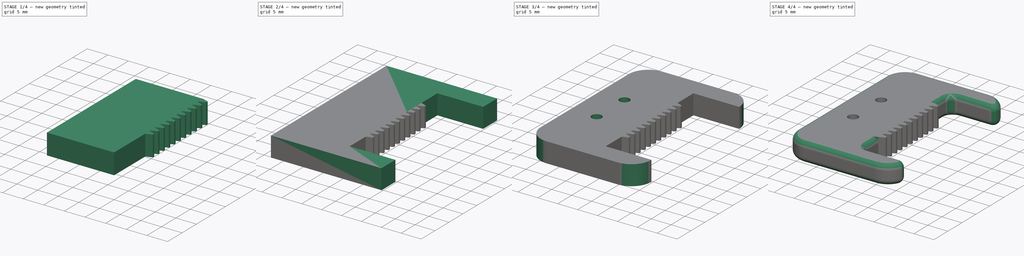
[diagram: build sequence overview — one tinted view per stage of 4, left to right]
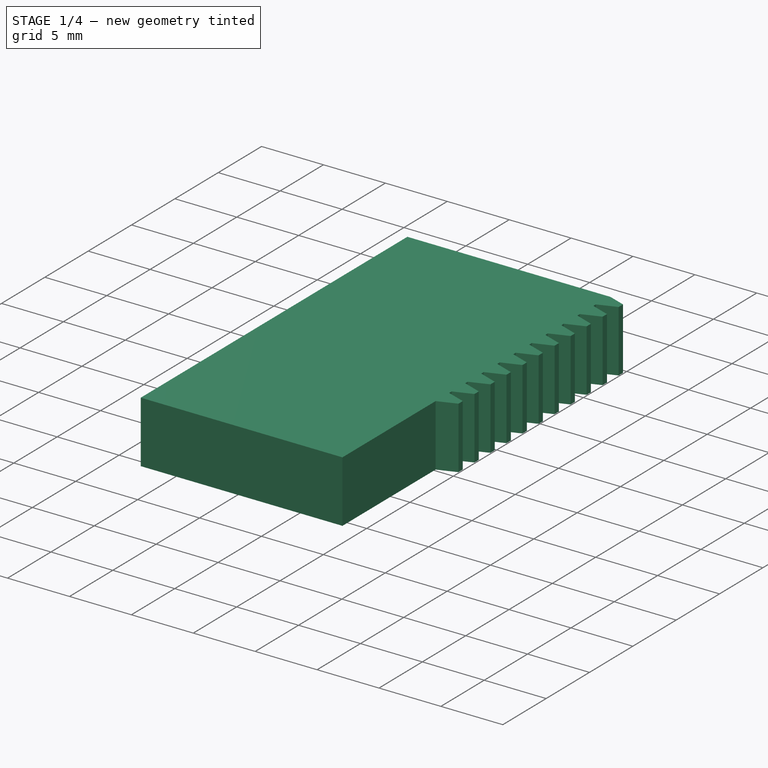
[diagram: stage 1 of 4 — iso view after this stage's code; geometry added in this stage tinted green]
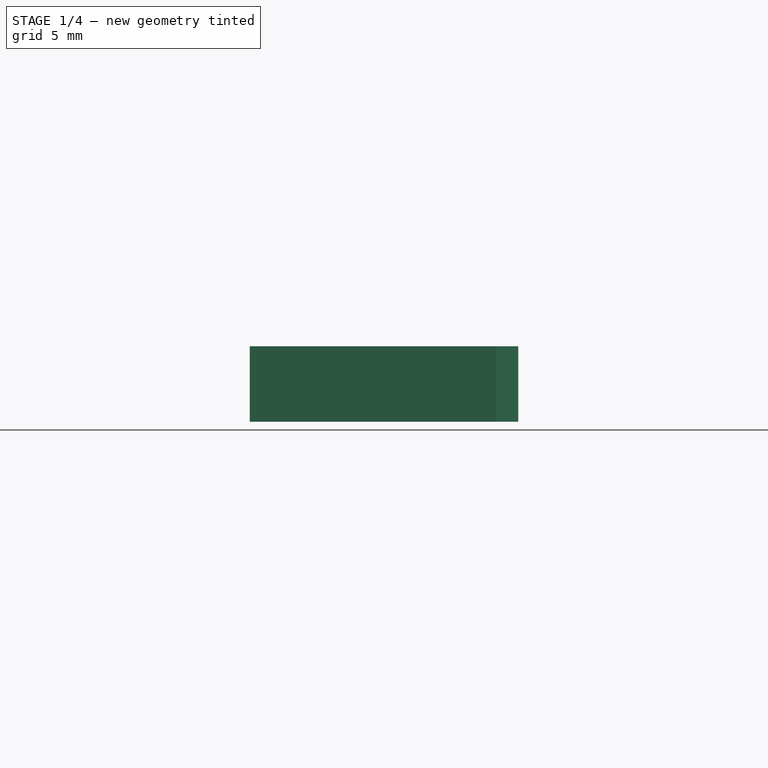
[diagram: stage 1 of 4 — front view after this stage's code; geometry added in this stage tinted green]
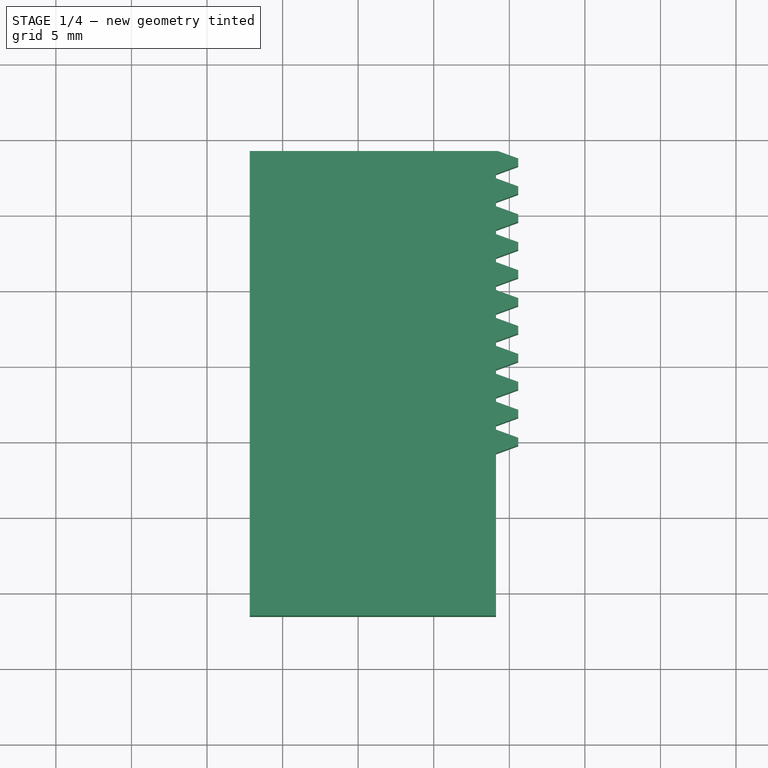
[diagram: stage 1 of 4 — top view after this stage's code; geometry added in this stage tinted green]
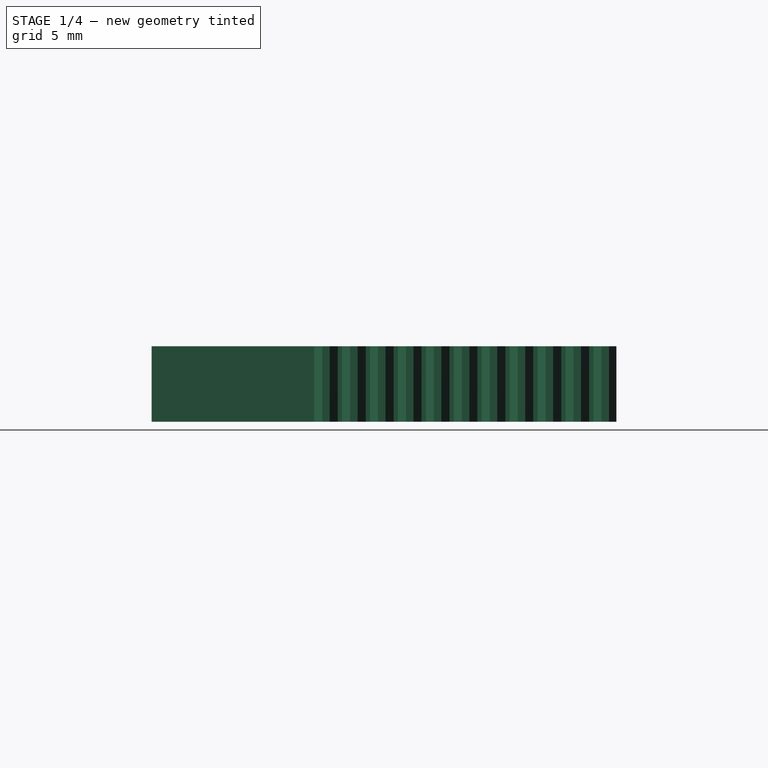
[diagram: stage 1 of 4 — right view after this stage's code; geometry added in this stage tinted green]
FCSTD DOCUMENT  (FreeCAD 1.0R39285 (Git))
Label: custom-gear-rack
License: All rights reserved
LicenseURL: http://en.wikipedia.org/wiki/All_rights_reserved
objects: Sketcher::SketchObject×6, PartDesign::CoordinateSystem×5, PartDesign::Fillet×4, Spreadsheet::Sheet×3, PartDesign::Pocket×3, PartDesign::Pad×3, PartDesign::FeaturePython×1, PartDesign::Body×1
note: 50 computed .brp shape members not serialized (recipe doc carries the construction recipe); baked Part::Feature solids carry a one-line shape summary decoded from their .brp

FEATURE [Spreadsheet::Sheet] Spreadsheet  label="Measurements"
  cells = A1='BoltHolePrintingMargin; B1(BoltHolePrintingMargin)==0.5 mm; A2='MountingBoltLength; B2(MountingBoltLength)==20 mm; A3='RackLength; B3(RackLength)==20 mm; A4='GearWidth; B4(GearWidth)==5 mm; A5='TieRodMountGap; B5(TieRodMountGap)==10 mm; A6='TieRodMountHoleSize; B6(TieRodMountHoleSize)==2 mm; A7='TieRodMountHoleDiameter; B7(TieRodMountHoleDiameter)==TieRodMountHoleSize + BoltHolePrintingMargin; A8='PinionGearWidth; B8(PinionGearWidth)==5 mm; A9='PinionGearToothCount; B9(PinionGearToothCount)=17; A10='PinionGearPitchDiameter; B10(PinionGearPitchDiameter)==10 mm; A11='PinionGearOuterDiameter; B11(PinionGearOuterDiameter)==11.5 mm; A12='PinionGearCircumference; B12(PinionGearCicumference)==PinionGearPitchDiameter * pi; A13='PinionGearCircularPitch; B13(PinionGearCircularPitch)==PinionGearCicumference / PinionGearToothCount; A14='PinionGearDiametralPitch; B14(PinionGearDiametralPitch)==pi / PinionGearCircularPitch; A15='RackHeight; B15(RackHeight)==PinionGearWidth; A16='RackThickness; B16(RackThickness)==<<Motors>>.StepperOffsetBaseToShaft - PinionGearPitchDiameter / 2 - RackToothDepth / 2; A17='RackToothCount; B17(RackToothCount)==RackLength / PinionGearCircularPitch; A18='RackToothCountRounded; B18(RackToothCountRounded)==ceil(RackToothCount); A19='RackPitchCircumference; B19(RackPitchCircumference)==RackToothCountRounded * PinionGearCircularPitch; A20='RackPitchDiameter; B20(RackPitchDiameter)==RackPitchCircumference / pi; A21='RackModule; B21(RackModule)==RackPitchDiameter / RackToothCountRounded; A22='RackCircularPitch; B22(RackCircularPitch)==RackModule * pi; A23='RackToothPressureAngle; B23(RackToothPressureAngle)==20 deg; A24='RackBaseToothDepth; B24(RackBaseToothDepth)==RackModule * 2; A25='RackToothClearance; B25(RackToothClearance)==0.5 mm; A26='RackToothHead; B26(RackToothHead)==0 mm; A27='RackToothDepth; B27(RackToothDepth)==RackBaseToothDepth + RackToothClearance / 2 + RackToothHead / 2; A28='RackToothInclineLength; B28(RackToothInclineLength)==tan(RackToothPressureAngle) * RackToothDepth; A29='RackStopperLength; B29(RackStopperLength)==5 mm; A30='RackStopperHeight; B30(RackStopperHeight)==PinionGearOuterDiameter; A31='RackStopperExtensionLength; B31(RackStopperExtensionLength)==PinionGearOuterDiameter / 2 + RackStopperLength; A32='BodyMountingBoltSize; B32(BodyMountingBoltSize)==2 mm; A33='BodyMountingBoltHoleDiameter; B33(BodyMountingBoltHoleDiameter)==BodyMountingBoltSize; A34='BodyMountingBoltGap; B34(BodyMountingBoltGap)==5 mm; A35='BodyMountingHoleDepth; B35(BodyMountingHoleDepth)==RackThickness - 1 mm; A36='OuterEdgeFillet; B36(OuterEdgeFillet)==RackStopperLength - 0.01 mm; A37='InnerCornerFillet; B37(InnerCornerFillet)==(RackStopperExtensionLength - RackStopperLength - BodyMountingBoltHoleDiameter) / 2; A38='SmoothingFillet; B38(SmoothingFillet)==(RackHeight - BodyMountingBoltHoleDiameter) / 2 - 0.01 mm
FEATURE [PartDesign::FeaturePython] InvoluteRack  # WARN: FeaturePython — macro-defined, semantics opaque (R4)
  AttacherType = Attacher::AttachEngine3D
  AttachmentSupport = -> [XY_Plane]
  MapMode = 5
  Suppressed = false
  add_endings = false
  clearance = 0.5
  double_helix = false
  head = 0
  head_fillet = 0
  height = 5
  helix_angle = 0
  module = 0.588235
  num_teeth = 11
  pressure_angle = 20
  properties_from_tool = false
  root_fillet = 0
  simplified = false
  thickness = 16.2868
  transverse_pitch = 1.848
  version = 1.3.0
  expr: clearance = <<Measurements>>.RackToothClearance
  expr: head = <<Measurements>>.RackToothHead
  expr: height = <<Measurements>>.RackHeight
  expr: module = <<Measurements>>.RackModule
  expr: num_teeth = <<Measurements>>.RackToothCountRounded
  expr: pressure_angle = <<Measurements>>.RackToothPressureAngle
  expr: thickness = <<Measurements>>.RackThickness
FEATURE [PartDesign::CoordinateSystem] Local_CS001  label="RackStopperExtFrontCoordSys"
  AttacherType = Attacher::AttachEngine3D
  AttachmentSupport = -> [InvoluteRack]
  MapMode = 6
  Placement = pos=(-17.1691,-0.783149,0) rot=(1,0,0;1.5708rad)
FEATURE [Sketcher::SketchObject] Sketch  label="RackStopperExtensionFrontSketch"
  ArcFitTolerance = 1e-06
  AttachmentSupport = -> [Local_CS001]
  FullyConstrained = true
  MakeInternals = false
  MapMode = 5
  Placement = pos=(-17.1691,-0.783149,0) rot=(1,0,0;1.5708rad)
  expr: Constraints[8] = <<Measurements>>.RackThickness
  expr: Constraints[9] = <<Measurements>>.RackHeight
  sketch-geometry (4):
    g0: LineSegment StartX=0 StartY=0 StartZ=0 EndX=16.2868 EndY=0 EndZ=0
    g1: LineSegment StartX=16.2868 StartY=0 StartZ=0 EndX=16.2868 EndY=5 EndZ=0
    g2: LineSegment StartX=16.2868 StartY=5 StartZ=0 EndX=0 EndY=5 EndZ=0
    g3: LineSegment StartX=0 StartY=5 StartZ=0 EndX=0 EndY=0 EndZ=0
  constraints (11):
    c: Coincident(g0,g1)
    c: Coincident(g1,g2)
    c: Coincident(g2,g3)
    c: Coincident(g3,g0)
    c: Horizontal(g0)
    c: Horizontal(g2)
    c: Vertical(g1)
    c: Vertical(g3)
    c: DistanceX(g0,g0) = 16.2868
    c: DistanceY(g3,g3) = 5
    c: Coincident(g0,g-1)
FEATURE [PartDesign::CoordinateSystem] Local_CS003  label="RackTrimCoordSys"
  AttacherType = Attacher::AttachEngine3D
  AttachmentOffset = pos=(0,-20,0) rot=(0,0,1;0rad)
  AttachmentSupport = -> [InvoluteRack]
  MapMode = 6
  Placement = pos=(-17.1691,19.2169,0) rot=(1,0,0;3.14159rad)
FEATURE [Sketcher::SketchObject] Sketch005  label="RackTrimSketch"
  ArcFitTolerance = 1e-06
  AttachmentSupport = -> [Local_CS003]
  FullyConstrained = true
  MakeInternals = false
  MapMode = 2
  Placement = pos=(-17.1691,19.2169,0) rot=(1,0,0;3.14159rad)
  expr: Constraints[10] = <<Measurements>>.RackLength
  expr: Constraints[9] = <<Measurements>>.RackThickness + <<Measurements>>.RackToothDepth
  sketch-geometry (4):
    g0: LineSegment StartX=0 StartY=0 StartZ=0 EndX=0 EndY=-20 EndZ=0
    g1: LineSegment StartX=0 StartY=-20 StartZ=0 EndX=17.7132 EndY=-20 EndZ=0
    g2: LineSegment StartX=17.7132 StartY=-20 StartZ=0 EndX=17.7132 EndY=0 EndZ=0
    g3: LineSegment StartX=17.7132 StartY=0 StartZ=0 EndX=0 EndY=0 EndZ=0
  constraints (11):
    c: Coincident(g0,g1)
    c: Coincident(g1,g2)
    c: Coincident(g2,g3)
    c: Coincident(g3,g0)
    c: Vertical(g0)
    c: Vertical(g2)
    c: Horizontal(g1)
    c: Horizontal(g3)
    c: Coincident(g0,g-1)
    c: DistanceX(g1,g1) = 17.7132
    c: DistanceY(g2,g2) = 20
FEATURE [PartDesign::Pocket] Pocket002  label="RackTrimPocket"
  BaseFeature = -> InvoluteRack
  Direction = (0,0,1)
  Length = 5
  Length2 = 5
  Profile = -> Sketch005
  ReferenceAxis = -> Sketch005 [N_Axis]
  Suppressed = false
  Type = 0
  expr: Length = <<Measurements>>.RackHeight
FEATURE [PartDesign::Pad] Pad  label="RackStopperExtensionFront"
  BaseFeature = -> Pocket002
  Direction = (0,-1,2e-16)
  Length = 10.75
  Length2 = 10
  Profile = -> Sketch
  ReferenceAxis = -> Sketch [N_Axis]
  Refine = true
  Suppressed = false
  Type = 0
  expr: Length = <<Measurements>>.RackStopperExtensionLength
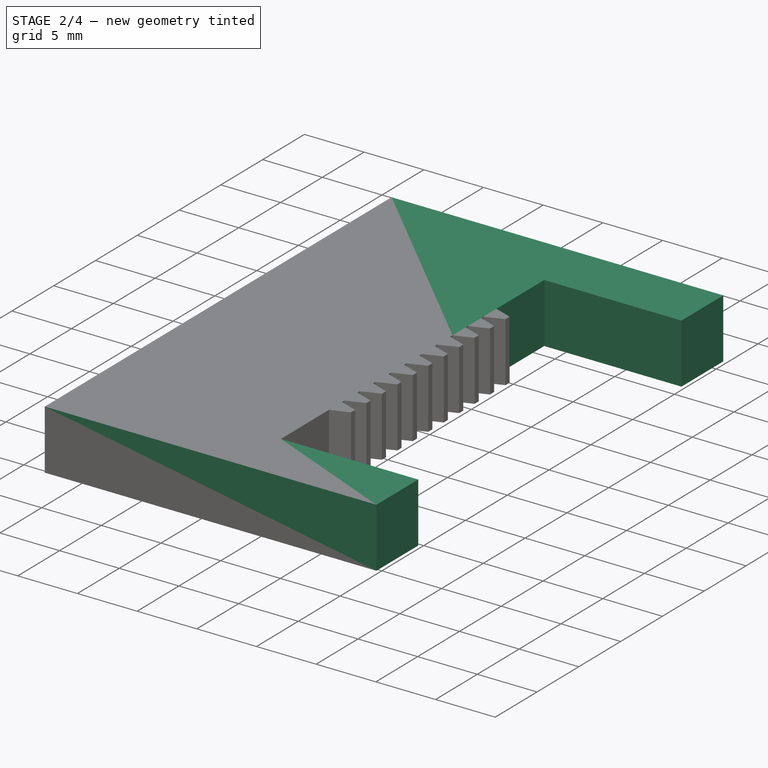
[diagram: stage 2 of 4 — iso view after this stage's code; geometry added in this stage tinted green]
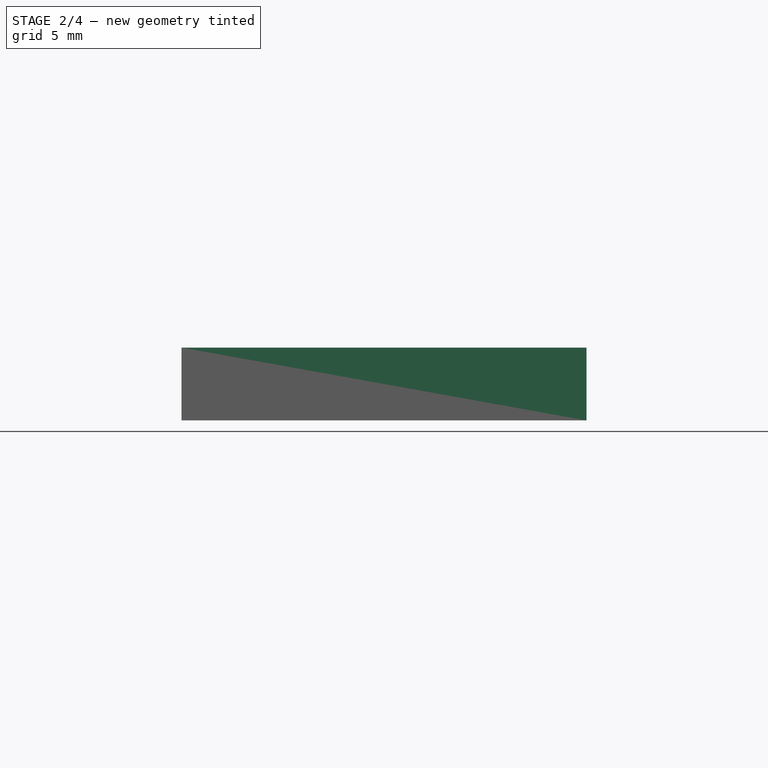
[diagram: stage 2 of 4 — front view after this stage's code; geometry added in this stage tinted green]
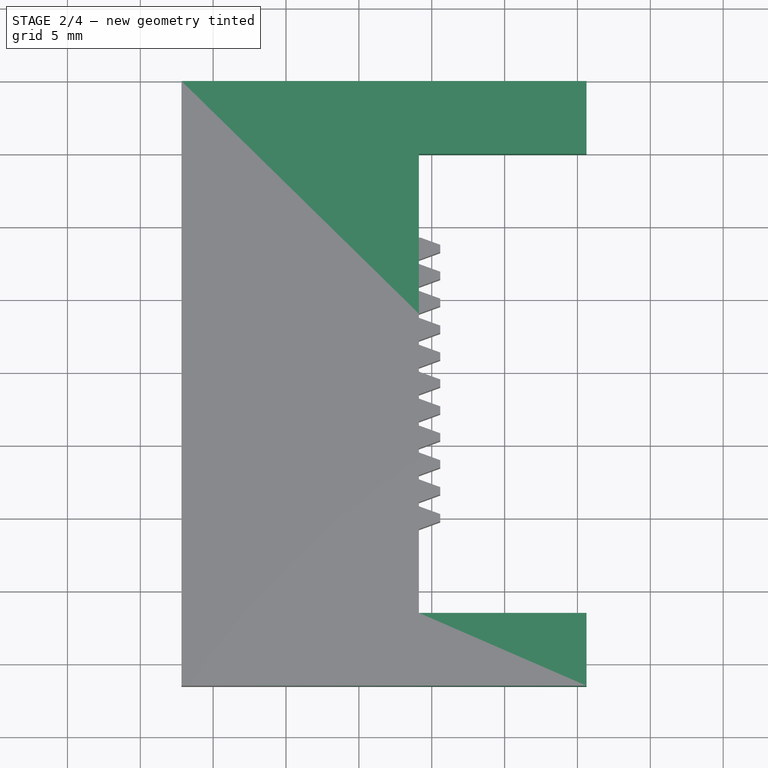
[diagram: stage 2 of 4 — top view after this stage's code; geometry added in this stage tinted green]
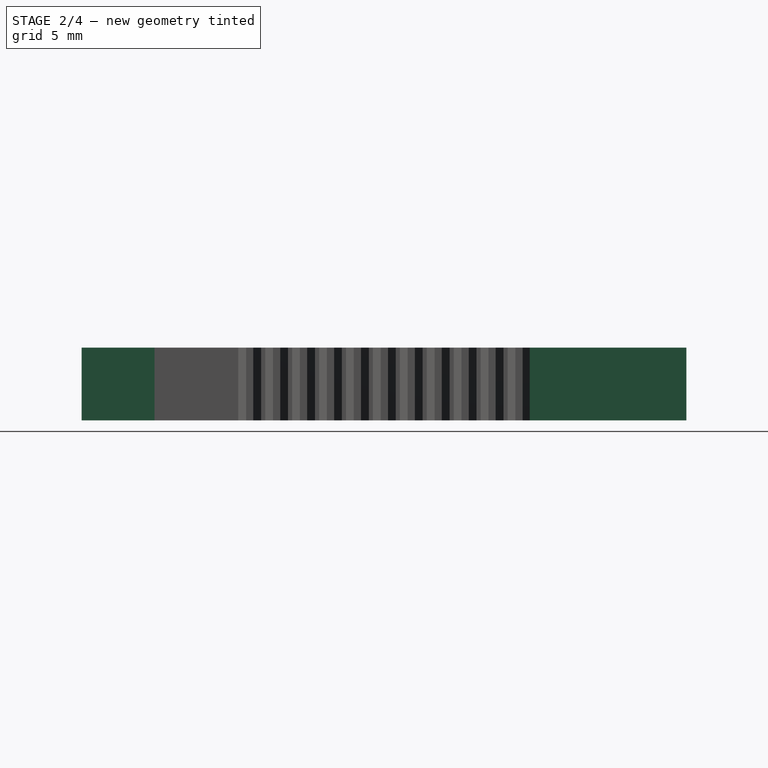
[diagram: stage 2 of 4 — right view after this stage's code; geometry added in this stage tinted green]
FEATURE [PartDesign::CoordinateSystem] Local_CS002  label="RackStopperExtBackCoordSys"
  AttacherType = Attacher::AttachEngine3D
  AttachmentOffset = pos=(0,0,0) rot=(0,-1,0;1.5708rad)
  AttachmentSupport = -> [Pad]
  MapMode = 6
  Placement = pos=(-17.1691,19.2169,0) rot=(0.57735,0.57735,0.57735;2.0944rad)
FEATURE [Sketcher::SketchObject] Sketch001  label="RackStopperExtensionBackSketch"
  ArcFitTolerance = 1e-06
  AttachmentSupport = -> [Local_CS002]
  FullyConstrained = true
  MakeInternals = false
  MapMode = 4
  Placement = pos=(-17.1691,19.2169,0) rot=(0.57735,0.57735,0.57735;4.18879rad)
  expr: Constraints[8] = <<Measurements>>.RackHeight
  expr: Constraints[9] = <<Measurements>>.RackThickness
  sketch-geometry (4):
    g0: LineSegment StartX=5 StartY=0 StartZ=0 EndX=5 EndY=16.2868 EndZ=0
    g1: LineSegment StartX=5 StartY=16.2868 StartZ=0 EndX=0 EndY=16.2868 EndZ=0
    g2: LineSegment StartX=0 StartY=16.2868 StartZ=0 EndX=0 EndY=0 EndZ=0
    g3: LineSegment StartX=0 StartY=0 StartZ=0 EndX=5 EndY=0 EndZ=0
  constraints (11):
    c: Coincident(g0,g1)
    c: Coincident(g1,g2)
    c: Coincident(g2,g3)
    c: Coincident(g3,g0)
    c: Vertical(g0)
    c: Vertical(g2)
    c: Horizontal(g1)
    c: Horizontal(g3)
    c: DistanceX(g3,g3) = 5
    c: DistanceY(g0,g0) = 16.2868
    c: Coincident(g2,g-1)
FEATURE [PartDesign::Pad] Pad001  label="RackStopperExtensionBack"
  BaseFeature = -> Pad
  Direction = (0,1,0)
  Length = 10.75
  Length2 = 10
  Profile = -> Sketch001
  ReferenceAxis = -> Sketch001 [N_Axis]
  Refine = true
  Suppressed = false
  Type = 0
  expr: Length = <<Measurements>>.RackStopperExtensionLength
FEATURE [Sketcher::SketchObject] Sketch002  label="RackStopperSketch"
  ArcFitTolerance = 1e-06
  AttachmentSupport = -> [Pad001]
  FullyConstrained = true
  MakeInternals = false
  MapMode = 45
  Placement = pos=(-0.882353,9.21685,2.5) rot=(0.707107,0,0.707107;3.14159rad)
  expr: Constraints[20] = <<Measurements>>.RackHeight
  expr: Constraints[21] = <<Measurements>>.RackStopperLength
  expr: Constraints[22] = <<Measurements>>.RackStopperLength
  expr: Constraints[23] = <<Measurements>>.RackHeight
  expr: Constraints[24] = <<Measurements>>.RackLength / 2 + <<Measurements>>.RackStopperExtensionLength
  expr: Constraints[25] = <<Measurements>>.RackLength / 2 + <<Measurements>>.RackStopperExtensionLength
  sketch-geometry (10):
    g0: LineSegment StartX=-2.5 StartY=15.75 StartZ=0 EndX=2.5 EndY=15.75 EndZ=0
    g1: LineSegment StartX=2.5 StartY=15.75 StartZ=0 EndX=2.5 EndY=20.75 EndZ=0
    g2: LineSegment StartX=2.5 StartY=20.75 StartZ=0 EndX=-2.5 EndY=20.75 EndZ=0
    g3: LineSegment StartX=-2.5 StartY=20.75 StartZ=0 EndX=-2.5 EndY=15.75 EndZ=0
    g4: GeomPoint [constr] X=0 Y=18.25 Z=0
    g5: LineSegment StartX=-2.5 StartY=-15.75 StartZ=0 EndX=-2.5 EndY=-20.75 EndZ=0
    g6: LineSegment StartX=-2.5 StartY=-20.75 StartZ=0 EndX=2.5 EndY=-20.75 EndZ=0
    g7: LineSegment StartX=2.5 StartY=-20.75 StartZ=0 EndX=2.5 EndY=-15.75 EndZ=0
    g8: LineSegment StartX=2.5 StartY=-15.75 StartZ=0 EndX=-2.5 EndY=-15.75 EndZ=0
    g9: GeomPoint [constr] X=0 Y=-18.25 Z=0
  constraints (26):
    c: Coincident(g0,g1)
    c: Coincident(g1,g2)
    c: Coincident(g2,g3)
    c: Coincident(g3,g0)
    c: Horizontal(g0)
    c: Horizontal(g2)
    c: Vertical(g1)
    c: Vertical(g3)
    c: Symmetric(g2,g0,g4)
    c: PointOnObject(g4,g-2)
    c: Coincident(g5,g6)
    c: Coincident(g6,g7)
    c: Coincident(g7,g8)
    c: Coincident(g8,g5)
    c: Vertical(g5)
    c: Vertical(g7)
    c: Horizontal(g6)
    c: Horizontal(g8)
    c: Symmetric(g7,g5,g9)
    c: PointOnObject(g9,g-2)
    c: DistanceX(g6,g6) = 5
    c: DistanceY(g7,g7) = 5
    c: DistanceY(g1,g1) = 5
    c: DistanceX(g2,g2) = 5
    c: DistanceY(g-1,g2) = 20.75
    c: DistanceY(g5,g-1) = 20.75
FEATURE [PartDesign::Pad] Pad002  label="RackStopper"
  AllowMultiFace = false
  BaseFeature = -> Pad001
  Direction = (1,0,-2e-16)
  Length = 11.5
  Length2 = 10
  Profile = -> Sketch002
  ReferenceAxis = -> Sketch002 [N_Axis]
  Refine = true
  Suppressed = false
  Type = 0
  expr: Length = <<Measurements>>.RackStopperHeight
FEATURE [PartDesign::CoordinateSystem] Local_CS004  label="BodyMountingHoleCoordSys"
  AttacherType = Attacher::AttachEngine3D
  AttachmentSupport = -> [Pad002]
  MapMode = 6
  Placement = pos=(-17.1691,-11.5331,2e-15) rot=(0,-1,0;1.5708rad)
FEATURE [Sketcher::SketchObject] Sketch003  label="BodyMountHoleSketch"
  ArcFitTolerance = 1e-06
  AttachmentSupport = -> [Local_CS004]
  FullyConstrained = true
  MakeInternals = false
  MapMode = 2
  Placement = pos=(-17.1691,-11.5331,2e-15) rot=(0,-1,0;1.5708rad)
  expr: Constraints[0] = <<Measurements>>.RackLength / 2 + <<Measurements>>.RackStopperExtensionLength - <<Measurements>>.BodyMountingBoltGap / 2
  expr: Constraints[1] = <<Measurements>>.RackHeight / 2
  expr: Constraints[2] = <<Measurements>>.BodyMountingBoltHoleDiameter
  expr: Constraints[3] = <<Measurements>>.BodyMountingBoltHoleDiameter
  expr: Constraints[4] = <<Measurements>>.BodyMountingBoltGap
  sketch-geometry (2):
    g0: Circle CenterX=2.5 CenterY=18.25 CenterZ=0 NormalX=0 NormalY=0 NormalZ=1 AngleXU=0 Radius=1
    g1: Circle CenterX=2.5 CenterY=23.25 CenterZ=0 NormalX=0 NormalY=0 NormalZ=1 AngleXU=0 Radius=1
  constraints (6):
    c: DistanceY(g-1,g0) = 18.25
    c: DistanceX(g-1,g0) = 2.5
    c: Diameter(g0) = 2
    c: Diameter(g1) = 2
    c: DistanceY(g0,g1) = 5
    c: Vertical(g1,g0)
FEATURE [PartDesign::Pocket] Pocket  label="BodyMountHole"
  BaseFeature = -> Pad002
  Direction = (1,0,-2e-16)
  Length = 15.2868
  Length2 = 5
  Profile = -> Sketch003
  ReferenceAxis = -> Sketch003 [N_Axis]
  Suppressed = false
  Type = 0
  expr: Length = <<Measurements>>.BodyMountingHoleDepth
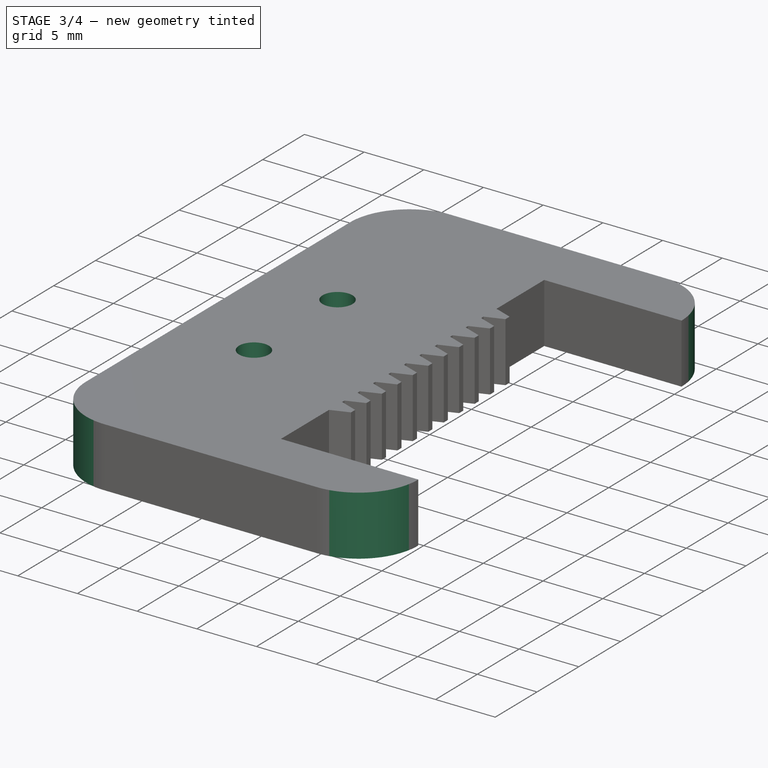
[diagram: stage 3 of 4 — iso view after this stage's code; geometry added in this stage tinted green]
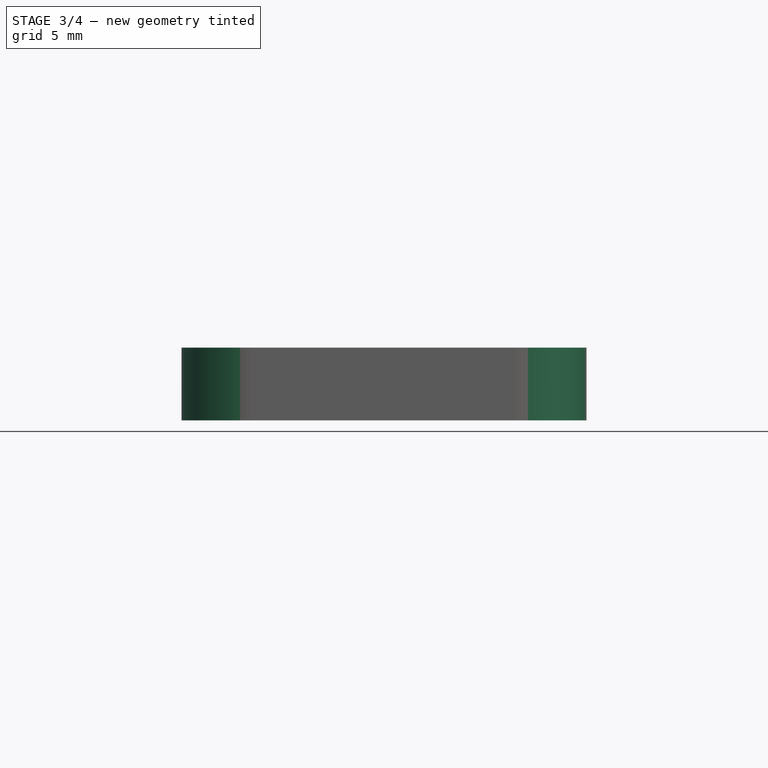
[diagram: stage 3 of 4 — front view after this stage's code; geometry added in this stage tinted green]
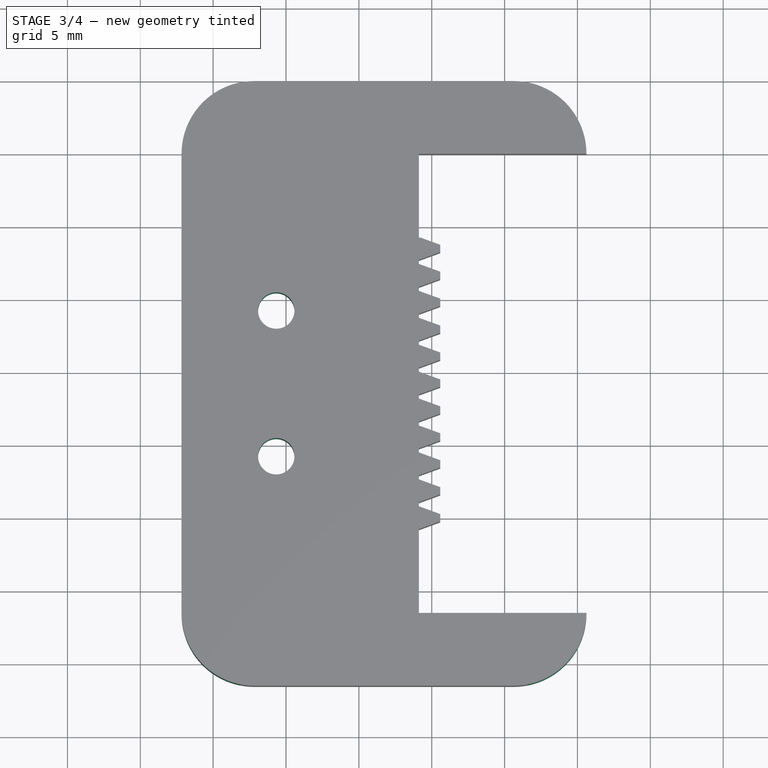
[diagram: stage 3 of 4 — top view after this stage's code; geometry added in this stage tinted green]
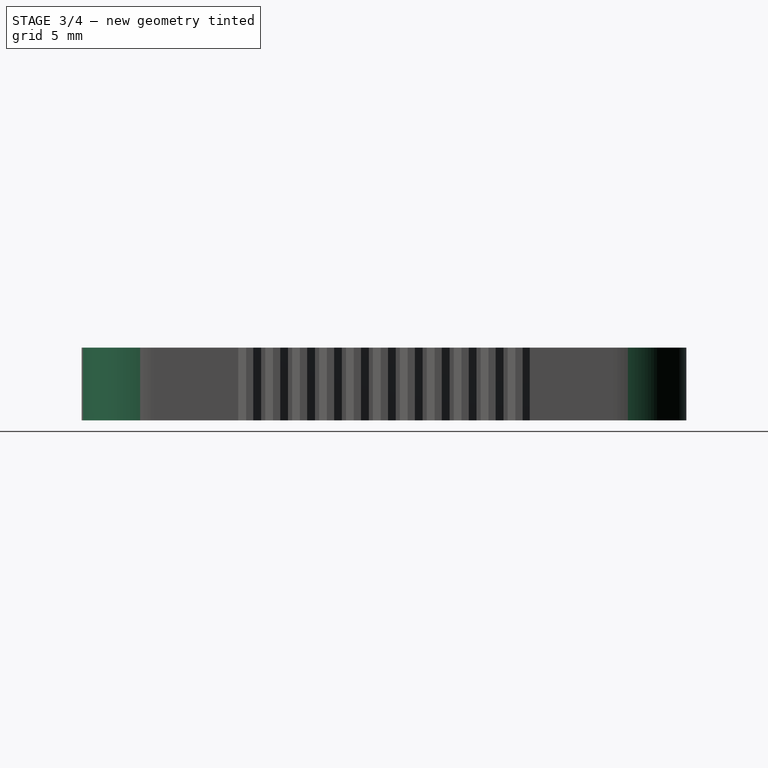
[diagram: stage 3 of 4 — right view after this stage's code; geometry added in this stage tinted green]
FEATURE [PartDesign::CoordinateSystem] Local_CS  label="TieRodMountHolesCoordinateSystem"
  AttacherType = Attacher::AttachEngine3D
  AttachmentSupport = -> [Pocket]
  MapMode = 6
  Placement = pos=(-0.882353,19.2169,0) rot=(1,0,0;3.14159rad)
FEATURE [Sketcher::SketchObject] Sketch004  label="TieRodMountHolesSketch"
  ArcFitTolerance = 1e-06
  AttachmentSupport = -> [Local_CS]
  FullyConstrained = true
  MakeInternals = false
  MapMode = 2
  Placement = pos=(-0.882353,19.2169,0) rot=(1,0,0;3.14159rad)
  expr: Constraints[0] = <<Measurements>>.TieRodMountHoleDiameter
  expr: Constraints[1] = <<Measurements>>.TieRodMountHoleDiameter
  expr: Constraints[2] = <<Measurements>>.TieRodMountGap
  expr: Constraints[4] = <<Measurements>>.RackThickness - <<SteeringBracket>>.ExpectedTieRodPlane
  expr: Constraints[5] = <<Measurements>>.RackLength / 2 - <<Measurements>>.TieRodMountGap / 2
  sketch-geometry (2):
    g0: Circle CenterX=-9.78676 CenterY=15 CenterZ=0 NormalX=0 NormalY=0 NormalZ=1 AngleXU=0 Radius=1.25
    g1: Circle CenterX=-9.78676 CenterY=5 CenterZ=0 NormalX=0 NormalY=0 NormalZ=1 AngleXU=0 Radius=1.25
  constraints (6):
    c: Diameter(g1) = 2.5
    c: Diameter(g0) = 2.5
    c: DistanceY(g1,g0) = 10
    c: Vertical(g0,g1)
    c: DistanceX(g1,g-1) = 9.78676
    c: DistanceY(g-1,g1) = 5
FEATURE [PartDesign::Pocket] Pocket001  label="TieRodMountHoles"
  BaseFeature = -> Pocket
  Direction = (0,0,1)
  Length = 5
  Length2 = 5
  Profile = -> Sketch004
  ReferenceAxis = -> Sketch004 [N_Axis]
  Suppressed = false
  Type = 0
  expr: Length = <<Measurements>>.RackHeight
FEATURE [PartDesign::Fillet] Fillet  label="OuterEdgeFillet"
  Base = -> Pocket001 [Edge119,Edge121,Edge117,Edge125]
  BaseFeature = -> Pocket001
  Radius = 4.99
  Refine = true
  SupportTransform = false
  Suppressed = false
  UseAllEdges = false
  expr: Radius = <<Measurements>>.OuterEdgeFillet
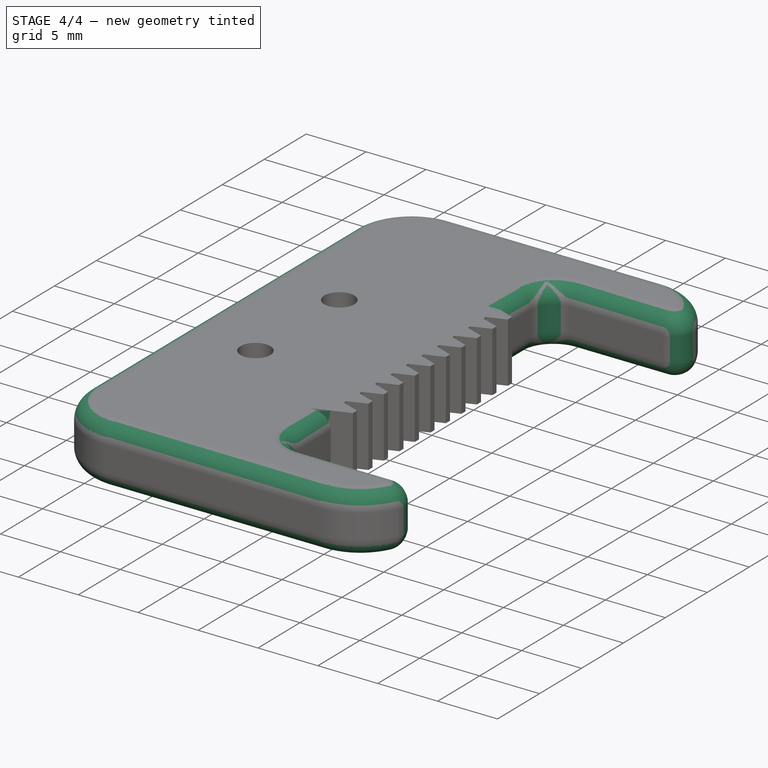
[diagram: stage 4 of 4 — iso view after this stage's code; geometry added in this stage tinted green]
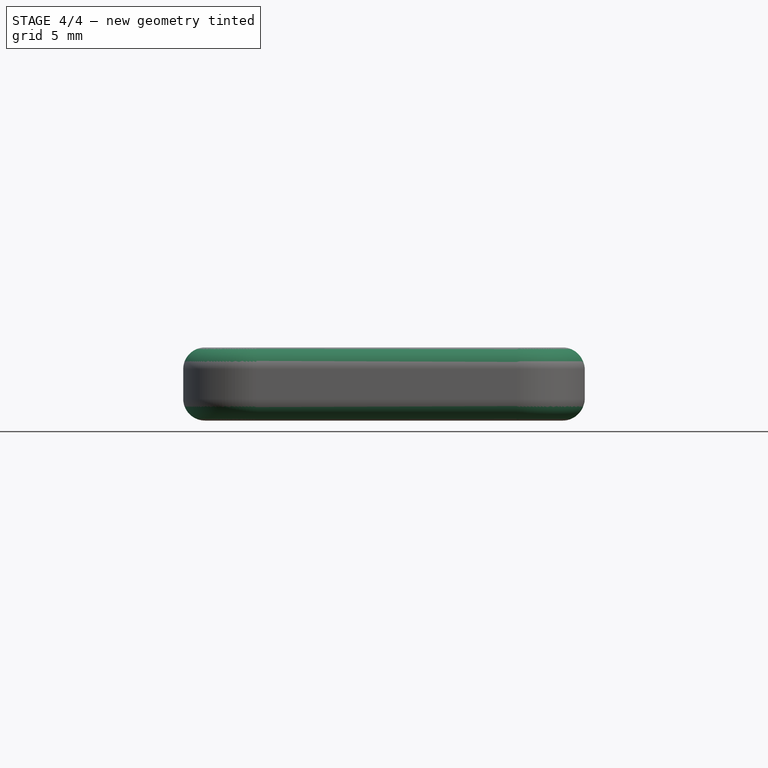
[diagram: stage 4 of 4 — front view after this stage's code; geometry added in this stage tinted green]
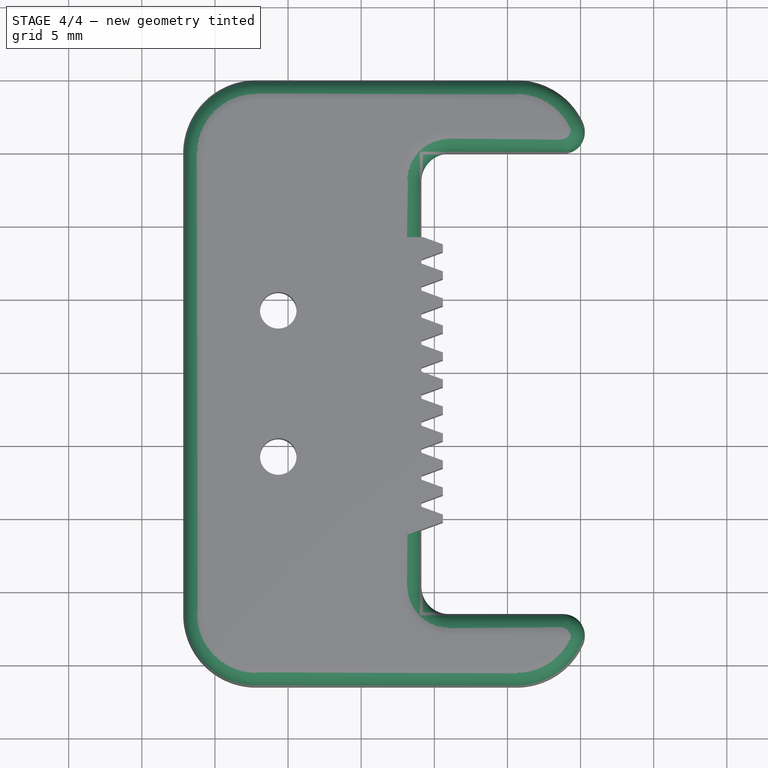
[diagram: stage 4 of 4 — top view after this stage's code; geometry added in this stage tinted green]
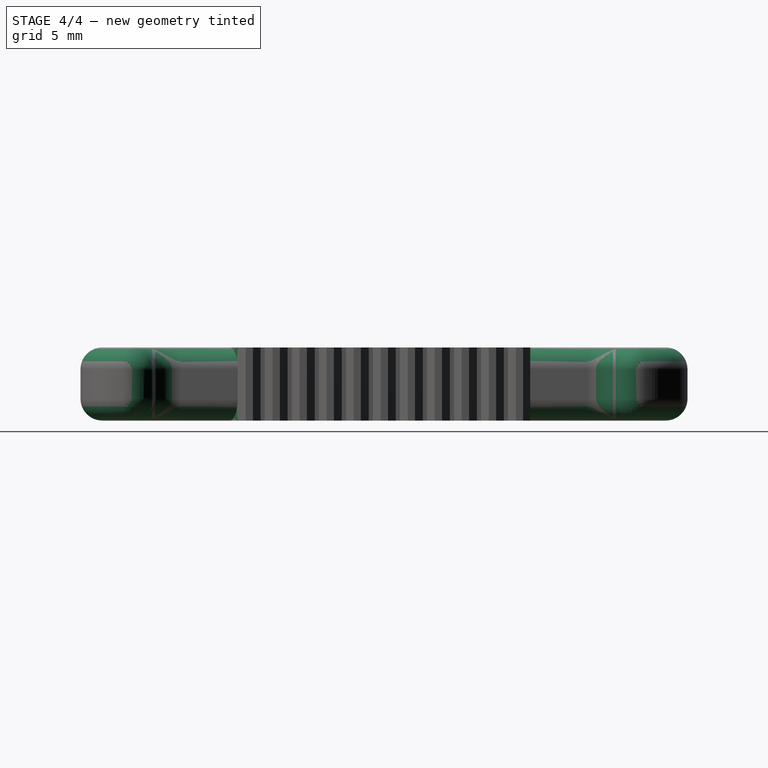
[diagram: stage 4 of 4 — right view after this stage's code; geometry added in this stage tinted green]
FEATURE [PartDesign::Fillet] Fillet001  label="InnerCornerFillet"
  Base = -> Fillet [Edge98,Edge66]
  BaseFeature = -> Fillet
  Radius = 1.875
  Refine = true
  SupportTransform = false
  Suppressed = false
  UseAllEdges = false
  expr: Radius = <<Measurements>>.InnerCornerFillet
FEATURE [Spreadsheet::Sheet] Spreadsheet001  label="Motors"
  cells = A1='StepperCableBlockWidth; B1(StepperCableBlockWidth)==15 mm; A2='StepperCableBlockLength; B2(StepperCableBlockLength)==6 mm; A3='StepperBaseToMountHole; B3(StepperBaseToMountHole)==17 mm; A4='StepperMountHoleOffset; B4(StepperMountHoleOffset)==35 mm; A5='StepperMountHoleDiameter; B5(StepperMountHoleDiameter)==4 mm; A6='StepperMountThickness; B6(StepperMountThickness)==0.8 mm; A7='StepperBaseWidth; B7(StepperBaseWidth)==14.5 mm; A8='StepperBaseLength; B8(StepperBaseLength)==16.5 mm; A9='StepperBaseDepth; B9(StepperBaseDepth)==3 mm; A10='StepperBaseToShaft; B10(StepperBaseToShaft)==25 mm; A11='StepperOffsetBaseToShaft; B11(StepperOffsetBaseToShaft)==StepperBaseToShaft - StepperBaseDepth
FEATURE [Spreadsheet::Sheet] Spreadsheet002  label="SteeringBracket"
  cells = A1='MountThickness; B1(MountThickness)==4 mm; A2='TieRodJointThickness; B2(TieRodJointThickness)==2.5 mm; A3='ExpectedTieRodPlane; B3(ExpectedTieRodPlane)==MountThickness + TieRodJointThickness
FEATURE [PartDesign::Fillet] Fillet002  label="OuterSmoothingFillet"
  Base = -> Fillet001 [Edge5,Edge71,Edge17,Edge98]
  BaseFeature = -> Fillet001
  Radius = 1.49
  SupportTransform = false
  Suppressed = false
  UseAllEdges = false
  expr: Radius = <<Measurements>>.SmoothingFillet
FEATURE [PartDesign::Fillet] Fillet003  label="InnerSmoothingFillet"
  Base = -> Fillet002 [Edge103,Edge20,Edge65,Edge1]
  BaseFeature = -> Fillet002
  Radius = 1.49
  SupportTransform = false
  Suppressed = false
  UseAllEdges = false
  expr: Radius = <<Measurements>>.SmoothingFillet
FEATURE [PartDesign::Body] Body  label="CustomGearRackBody"
  AllowCompound = false
  Group = -> [InvoluteRack,Local_CS003,Sketch005,Pocket002,Local_CS001,Sketch,Pad,Local_CS002,Sketch001,Pad001,Sketch002,Pad002,Local_CS004,Sketch003,Pocket,Local_CS,Sketch004,Pocket001,Fillet,Fillet001,Fillet002,Fillet003]
  Origin = -> Origin
  Tip = -> Fillet003
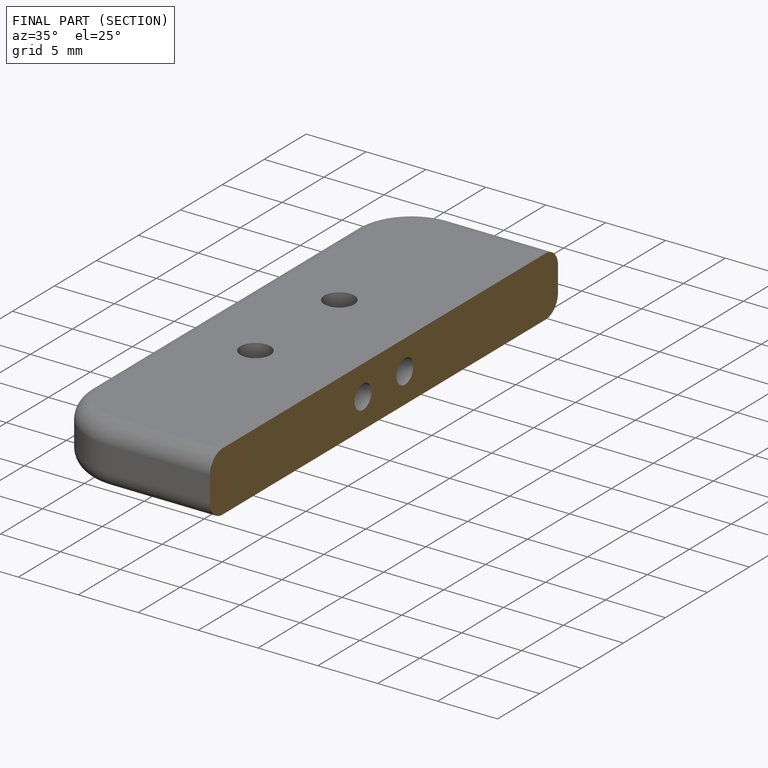
[diagram: finished part — half-section view (interior)]
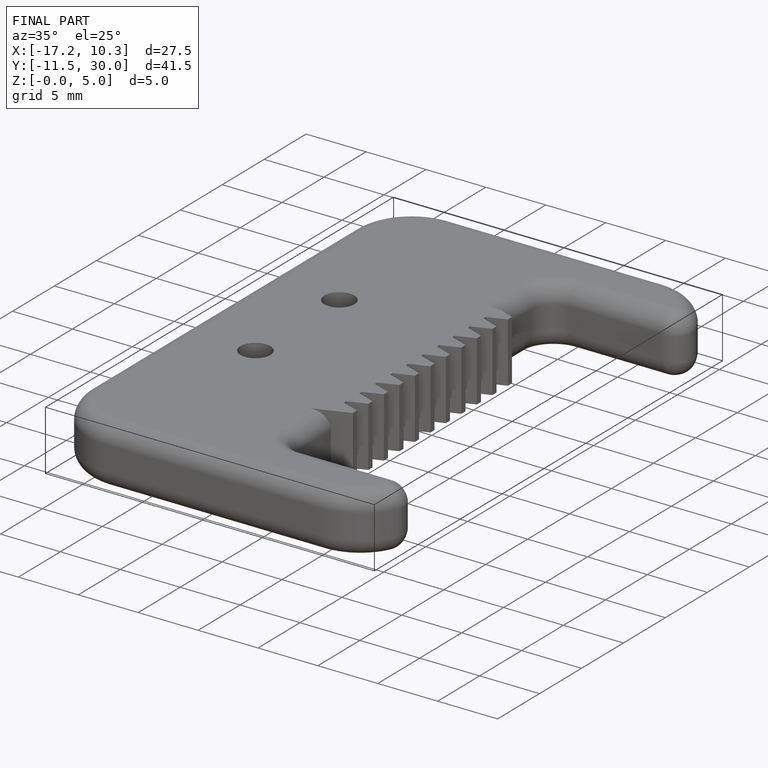
[diagram: finished part — iso view with bounding-box wireframe]
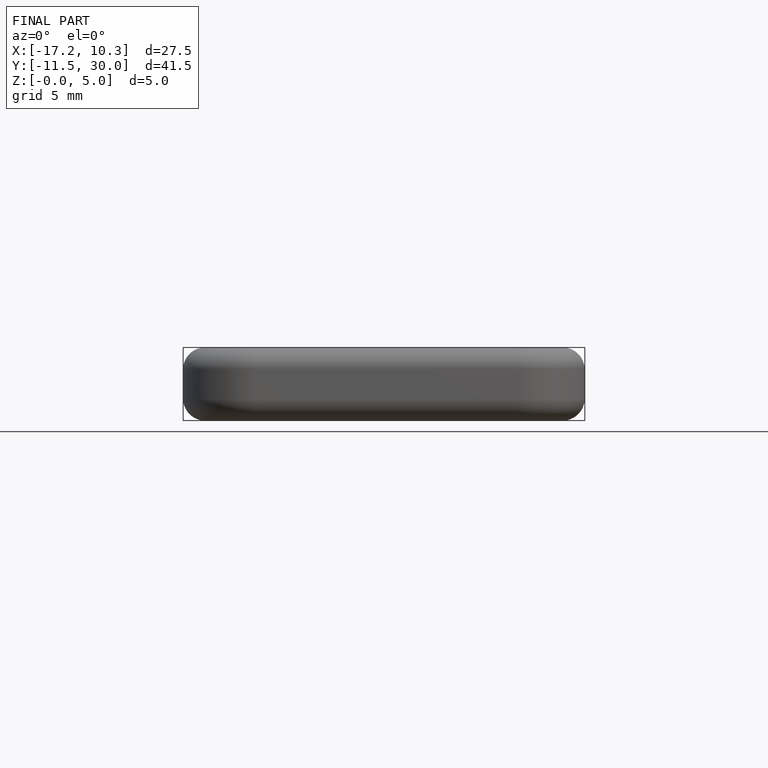
[diagram: finished part — front view with bounding-box wireframe]
